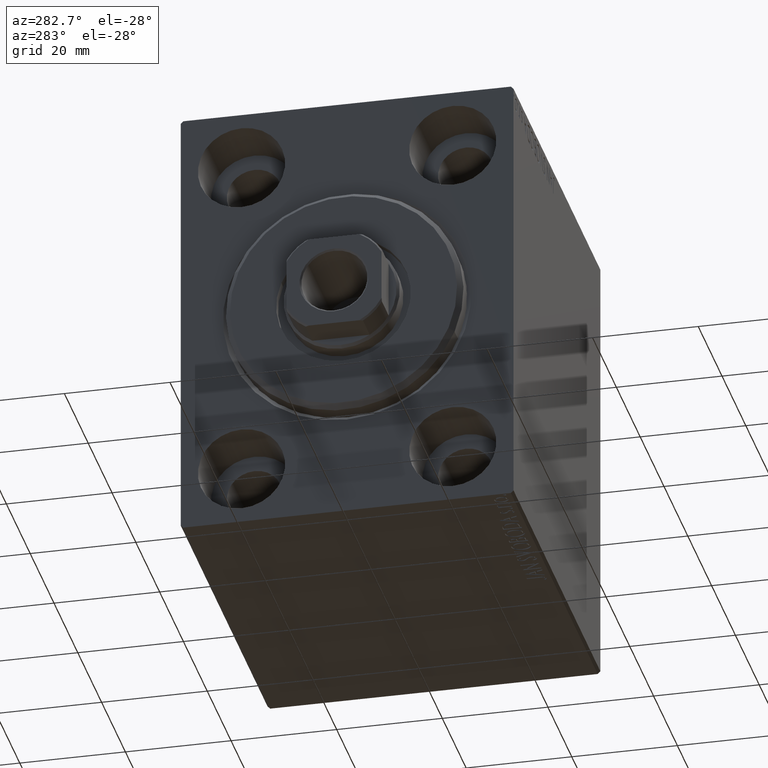
[diagram: clean part render]
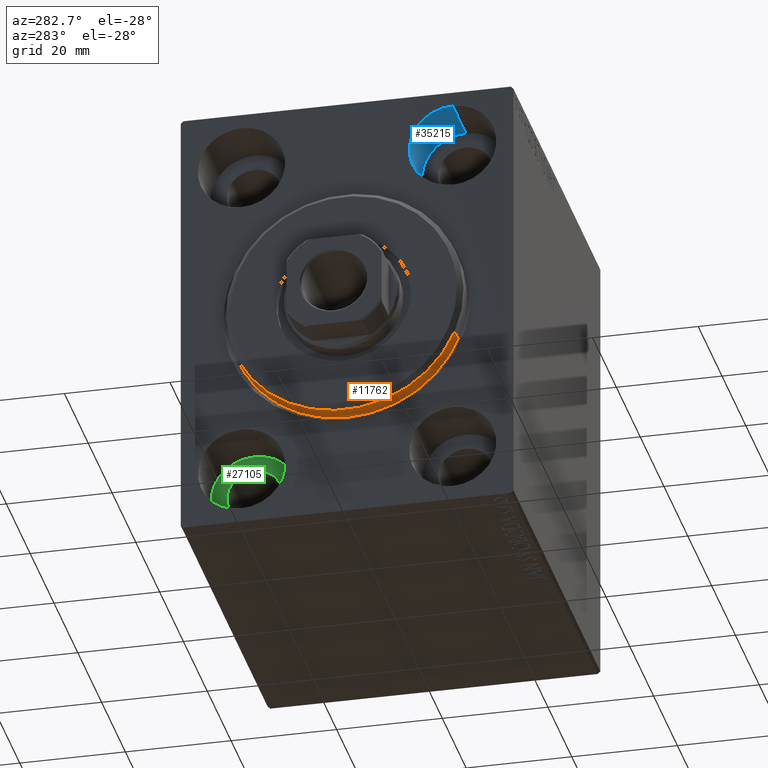
[diagram: same view with three faces highlighted in distinct colors, each labeled with its STEP entity id]
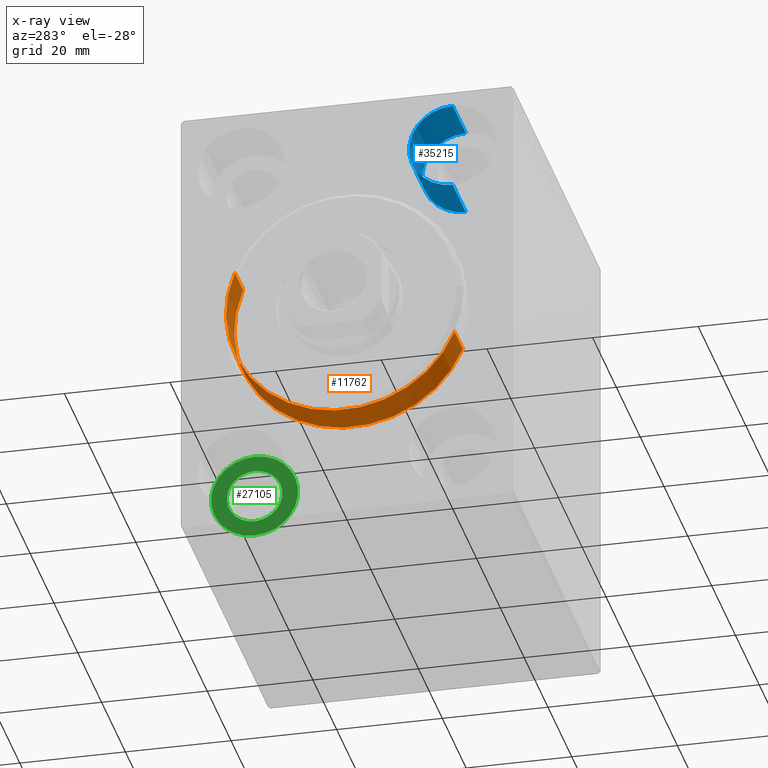
[diagram: x-ray of the same camera — body ghosted, the three highlighted faces saturated]
A machine part, auxiliary view with three faces highlighted in distinct colors.
The next image is the same camera in x-ray (body ghosted, the three faces saturated) — at least one of them is partly hidden behind the body in this view.
Their STEP definitions:

[orange] entity #11762 — the highlighted cylindrical surface (partial cylindrical patch) has radius 22.5 mm, axis along (1, 0, 0).
#4510 = LINE ( 'NONE', #17962, #16918 ) ;
#4736 = EDGE_CURVE ( 'NONE', #8032, #9102, #4874, .T. ) ;
#4874 = CIRCLE ( 'NONE', #9809, 22.50000000000000355 ) ;
#7245 = EDGE_CURVE ( 'NONE', #28181, #8136, #8463, .T. ) ;
#8032 = VERTEX_POINT ( 'NONE', #24716 ) ;
#8136 = VERTEX_POINT ( 'NONE', #23135 ) ;
#8463 = CIRCLE ( 'NONE', #11988, 22.50000000000000355 ) ;
#9102 = VERTEX_POINT ( 'NONE', #37972 ) ;
#9809 = AXIS2_PLACEMENT_3D ( 'NONE', #28762, #18383, #42074 ) ;
#11762 = ADVANCED_FACE ( 'NONE', ( #27155 ), #37567, .T. ) ;
#11988 = AXIS2_PLACEMENT_3D ( 'NONE', #28851, #31743, #15598 ) ;
#15598 = DIRECTION ( 'NONE',  ( 0.000000000000000000, 0.000000000000000000, -1.000000000000000000 ) ) ;
#16918 = VECTOR ( 'NONE', #35001, 1000.000000000000000 ) ;
#17245 = EDGE_LOOP ( 'NONE', ( #43109, #33259, #20909, #17388 ) ) ;
#17388 = ORIENTED_EDGE ( 'NONE', *, *, #33690, .F. ) ;
#17962 = CARTESIAN_POINT ( 'NONE',  ( 3.000000000000000000, 2.755455298081545172E-15, -22.50000000000000355 ) ) ;
#18383 = DIRECTION ( 'NONE',  ( -1.000000000000000000, 0.000000000000000000, 0.000000000000000000 ) ) ;
#20571 = AXIS2_PLACEMENT_3D ( 'NONE', #40684, #23395, #36918 ) ;
#20909 = ORIENTED_EDGE ( 'NONE', *, *, #4736, .F. ) ;
#23135 = CARTESIAN_POINT ( 'NONE',  ( 1.999999999999992228, 2.755455298081545172E-15, -22.50000000000000355 ) ) ;
#23215 = DIRECTION ( 'NONE',  ( -1.000000000000000000, -0.000000000000000000, -0.000000000000000000 ) ) ;
#23395 = DIRECTION ( 'NONE',  ( -1.000000000000000000, -0.000000000000000000, -0.000000000000000000 ) ) ;
#24397 = CARTESIAN_POINT ( 'NONE',  ( 1.999999999999992228, 0.000000000000000000, 22.50000000000000355 ) ) ;
#24716 = CARTESIAN_POINT ( 'NONE',  ( -5.000000000000000000, 0.000000000000000000, 22.50000000000000355 ) ) ;
#27155 = FACE_OUTER_BOUND ( 'NONE', #17245, .T. ) ;
#27195 = CARTESIAN_POINT ( 'NONE',  ( 3.000000000000000000, 0.000000000000000000, 22.50000000000000355 ) ) ;
#28181 = VERTEX_POINT ( 'NONE', #24397 ) ;
#28762 = CARTESIAN_POINT ( 'NONE',  ( -5.000000000000000000, 0.000000000000000000, 0.000000000000000000 ) ) ;
#28851 = CARTESIAN_POINT ( 'NONE',  ( 1.999999999999992228, 0.000000000000000000, 0.000000000000000000 ) ) ;
#30299 = LINE ( 'NONE', #27195, #38672 ) ;
#31743 = DIRECTION ( 'NONE',  ( -1.000000000000000000, 0.000000000000000000, 0.000000000000000000 ) ) ;
#33259 = ORIENTED_EDGE ( 'NONE', *, *, #43283, .T. ) ;
#33690 = EDGE_CURVE ( 'NONE', #28181, #8032, #30299, .T. ) ;
#35001 = DIRECTION ( 'NONE',  ( -1.000000000000000000, -0.000000000000000000, -0.000000000000000000 ) ) ;
#36918 = DIRECTION ( 'NONE',  ( 0.000000000000000000, 0.000000000000000000, 1.000000000000000000 ) ) ;
#37567 = CYLINDRICAL_SURFACE ( 'NONE', #20571, 22.50000000000000355 ) ;
#37972 = CARTESIAN_POINT ( 'NONE',  ( -5.000000000000000000, 2.755455298081545172E-15, -22.50000000000000355 ) ) ;
#38672 = VECTOR ( 'NONE', #23215, 1000.000000000000000 ) ;
#40684 = CARTESIAN_POINT ( 'NONE',  ( 3.000000000000000000, 0.000000000000000000, 0.000000000000000000 ) ) ;
#42074 = DIRECTION ( 'NONE',  ( 0.000000000000000000, 0.000000000000000000, 1.000000000000000000 ) ) ;
#43109 = ORIENTED_EDGE ( 'NONE', *, *, #7245, .T. ) ;
#43283 = EDGE_CURVE ( 'NONE', #8136, #9102, #4510, .T. ) ;

[blue] entity #35215 — the highlighted cylindrical surface (partial cylindrical patch) has radius 8.25 mm, axis along (-1, -0, -0).
#1453 = CARTESIAN_POINT ( 'NONE',  ( 0.000000000000000000, -19.99999999999999645, 39.74999999999999289 ) ) ;
#3237 = ORIENTED_EDGE ( 'NONE', *, *, #6201, .F. ) ;
#5019 = DIRECTION ( 'NONE',  ( 0.000000000000000000, 0.000000000000000000, 1.000000000000000000 ) ) ;
#6201 = EDGE_CURVE ( 'NONE', #19568, #21807, #35254, .T. ) ;
#7231 = DIRECTION ( 'NONE',  ( -1.000000000000000000, -0.000000000000000000, -0.000000000000000000 ) ) ;
#9231 = CARTESIAN_POINT ( 'NONE',  ( 11.00000000000000000, -19.99999999999999645, 31.50000000000000000 ) ) ;
#10033 = AXIS2_PLACEMENT_3D ( 'NONE', #31965, #35292, #5019 ) ;
#10202 = LINE ( 'NONE', #36512, #40094 ) ;
#12759 = DIRECTION ( 'NONE',  ( 0.000000000000000000, 0.000000000000000000, 1.000000000000000000 ) ) ;
#13196 = CARTESIAN_POINT ( 'NONE',  ( 11.00000000000000000, -19.99999999999999645, 23.25000000000000355 ) ) ;
#13300 = AXIS2_PLACEMENT_3D ( 'NONE', #9231, #29770, #12759 ) ;
#17244 = EDGE_CURVE ( 'NONE', #18587, #17331, #17772, .T. ) ;
#17331 = VERTEX_POINT ( 'NONE', #41020 ) ;
#17772 = CIRCLE ( 'NONE', #10033, 8.249999999999992895 ) ;
#18587 = VERTEX_POINT ( 'NONE', #1453 ) ;
#18711 = ORIENTED_EDGE ( 'NONE', *, *, #37022, .F. ) ;
#19371 = FACE_OUTER_BOUND ( 'NONE', #37376, .T. ) ;
#19568 = VERTEX_POINT ( 'NONE', #35927 ) ;
#20249 = LINE ( 'NONE', #13196, #23884 ) ;
#21807 = VERTEX_POINT ( 'NONE', #34320 ) ;
#23884 = VECTOR ( 'NONE', #7231, 1000.000000000000000 ) ;
#26394 = DIRECTION ( 'NONE',  ( -1.000000000000000000, 0.000000000000000000, 0.000000000000000000 ) ) ;
#27210 = ORIENTED_EDGE ( 'NONE', *, *, #33663, .T. ) ;
#29770 = DIRECTION ( 'NONE',  ( -1.000000000000000000, -0.000000000000000000, -0.000000000000000000 ) ) ;
#30083 = DIRECTION ( 'NONE',  ( -1.000000000000000000, -0.000000000000000000, -0.000000000000000000 ) ) ;
#31965 = CARTESIAN_POINT ( 'NONE',  ( 0.000000000000000000, -19.99999999999999645, 31.50000000000000000 ) ) ;
#33663 = EDGE_CURVE ( 'NONE', #19568, #18587, #10202, .T. ) ;
#34320 = CARTESIAN_POINT ( 'NONE',  ( 11.00000000000000000, -19.99999999999999645, 23.25000000000000355 ) ) ;
#35215 = ADVANCED_FACE ( 'NONE', ( #19371 ), #39538, .F. ) ;
#35254 = CIRCLE ( 'NONE', #40914, 8.249999999999992895 ) ;
#35292 = DIRECTION ( 'NONE',  ( -1.000000000000000000, 0.000000000000000000, 0.000000000000000000 ) ) ;
#35927 = CARTESIAN_POINT ( 'NONE',  ( 11.00000000000000000, -19.99999999999999645, 39.74999999999999289 ) ) ;
#36512 = CARTESIAN_POINT ( 'NONE',  ( 11.00000000000000000, -19.99999999999999645, 39.74999999999999289 ) ) ;
#37022 = EDGE_CURVE ( 'NONE', #21807, #17331, #20249, .T. ) ;
#37031 = CARTESIAN_POINT ( 'NONE',  ( 11.00000000000000000, -19.99999999999999645, 31.50000000000000000 ) ) ;
#37376 = EDGE_LOOP ( 'NONE', ( #18711, #3237, #27210, #43175 ) ) ;
#39538 = CYLINDRICAL_SURFACE ( 'NONE', #13300, 8.249999999999992895 ) ;
#40094 = VECTOR ( 'NONE', #30083, 1000.000000000000000 ) ;
#40914 = AXIS2_PLACEMENT_3D ( 'NONE', #37031, #26394, #43459 ) ;
#41020 = CARTESIAN_POINT ( 'NONE',  ( 0.000000000000000000, -19.99999999999999645, 23.25000000000000355 ) ) ;
#43175 = ORIENTED_EDGE ( 'NONE', *, *, #17244, .T. ) ;
#43459 = DIRECTION ( 'NONE',  ( 0.000000000000000000, 0.000000000000000000, 1.000000000000000000 ) ) ;

[green] entity #27105 — the highlighted planar face has unit normal (-1, 0, 0).
#15 = EDGE_CURVE ( 'NONE', #41811, #34601, #6283, .T. ) ;
#253 = CIRCLE ( 'NONE', #15039, 5.250000000000000888 ) ;
#427 = EDGE_CURVE ( 'NONE', #27629, #43049, #40095, .T. ) ;
#3339 = ORIENTED_EDGE ( 'NONE', *, *, #427, .T. ) ;
#4923 = FACE_OUTER_BOUND ( 'NONE', #15851, .T. ) ;
#5352 = CARTESIAN_POINT ( 'NONE',  ( 11.00000000000000000, 19.99999999999999645, -31.49999999999999289 ) ) ;
#5431 = CARTESIAN_POINT ( 'NONE',  ( 10.99999999999999645, 19.99999999999999645, -36.74999999999999289 ) ) ;
#6283 = CIRCLE ( 'NONE', #23101, 5.250000000000000888 ) ;
#7249 = ORIENTED_EDGE ( 'NONE', *, *, #15, .F. ) ;
#8346 = CARTESIAN_POINT ( 'NONE',  ( 11.00000000000000000, 19.99999999999999645, -23.24999999999999289 ) ) ;
#8993 = DIRECTION ( 'NONE',  ( -1.000000000000000000, 0.000000000000000000, 0.000000000000000000 ) ) ;
#9333 = CIRCLE ( 'NONE', #19184, 8.250000000000000000 ) ;
#13121 = CARTESIAN_POINT ( 'NONE',  ( 10.99999999999999645, 19.99999999999999645, -26.24999999999999289 ) ) ;
#13144 = EDGE_CURVE ( 'NONE', #43049, #27629, #9333, .T. ) ;
#14049 = DIRECTION ( 'NONE',  ( 0.000000000000000000, 0.000000000000000000, 1.000000000000000000 ) ) ;
#15039 = AXIS2_PLACEMENT_3D ( 'NONE', #19219, #36267, #36050 ) ;
#15076 = DIRECTION ( 'NONE',  ( 0.000000000000000000, 0.000000000000000000, 1.000000000000000000 ) ) ;
#15851 = EDGE_LOOP ( 'NONE', ( #3339, #27407 ) ) ;
#17410 = CARTESIAN_POINT ( 'NONE',  ( 11.00000000000000000, 19.99999999999999645, -39.74999999999999289 ) ) ;
#19184 = AXIS2_PLACEMENT_3D ( 'NONE', #28402, #31721, #14049 ) ;
#19219 = CARTESIAN_POINT ( 'NONE',  ( 10.99999999999999645, 19.99999999999999645, -31.49999999999999289 ) ) ;
#19791 = CARTESIAN_POINT ( 'NONE',  ( 10.99999999999999645, 19.99999999999999645, -31.49999999999999289 ) ) ;
#20980 = AXIS2_PLACEMENT_3D ( 'NONE', #42300, #25678, #42521 ) ;
#21041 = EDGE_CURVE ( 'NONE', #34601, #41811, #253, .T. ) ;
#21904 = DIRECTION ( 'NONE',  ( -1.000000000000000000, 0.000000000000000000, 0.000000000000000000 ) ) ;
#23101 = AXIS2_PLACEMENT_3D ( 'NONE', #19791, #8993, #36406 ) ;
#23623 = AXIS2_PLACEMENT_3D ( 'NONE', #5352, #21904, #15076 ) ;
#25678 = DIRECTION ( 'NONE',  ( -1.000000000000000000, 0.000000000000000000, 0.000000000000000000 ) ) ;
#27105 = ADVANCED_FACE ( 'NONE', ( #35197, #4923 ), #31867, .T. ) ;
#27407 = ORIENTED_EDGE ( 'NONE', *, *, #13144, .T. ) ;
#27629 = VERTEX_POINT ( 'NONE', #8346 ) ;
#28402 = CARTESIAN_POINT ( 'NONE',  ( 11.00000000000000000, 19.99999999999999645, -31.49999999999999289 ) ) ;
#31721 = DIRECTION ( 'NONE',  ( -1.000000000000000000, 0.000000000000000000, 0.000000000000000000 ) ) ;
#31867 = PLANE ( 'NONE',  #23623 ) ;
#33342 = EDGE_LOOP ( 'NONE', ( #7249, #34013 ) ) ;
#34013 = ORIENTED_EDGE ( 'NONE', *, *, #21041, .F. ) ;
#34601 = VERTEX_POINT ( 'NONE', #5431 ) ;
#35197 = FACE_BOUND ( 'NONE', #33342, .T. ) ;
#36050 = DIRECTION ( 'NONE',  ( 0.000000000000000000, 0.000000000000000000, 1.000000000000000000 ) ) ;
#36267 = DIRECTION ( 'NONE',  ( -1.000000000000000000, 0.000000000000000000, 0.000000000000000000 ) ) ;
#36406 = DIRECTION ( 'NONE',  ( 0.000000000000000000, 0.000000000000000000, 1.000000000000000000 ) ) ;
#40095 = CIRCLE ( 'NONE', #20980, 8.250000000000000000 ) ;
#41811 = VERTEX_POINT ( 'NONE', #13121 ) ;
#42300 = CARTESIAN_POINT ( 'NONE',  ( 11.00000000000000000, 19.99999999999999645, -31.49999999999999289 ) ) ;
#42521 = DIRECTION ( 'NONE',  ( 0.000000000000000000, 0.000000000000000000, 1.000000000000000000 ) ) ;
#43049 = VERTEX_POINT ( 'NONE', #17410 ) ;